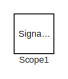
[diagram: root canvas - part 1/4, top left region]
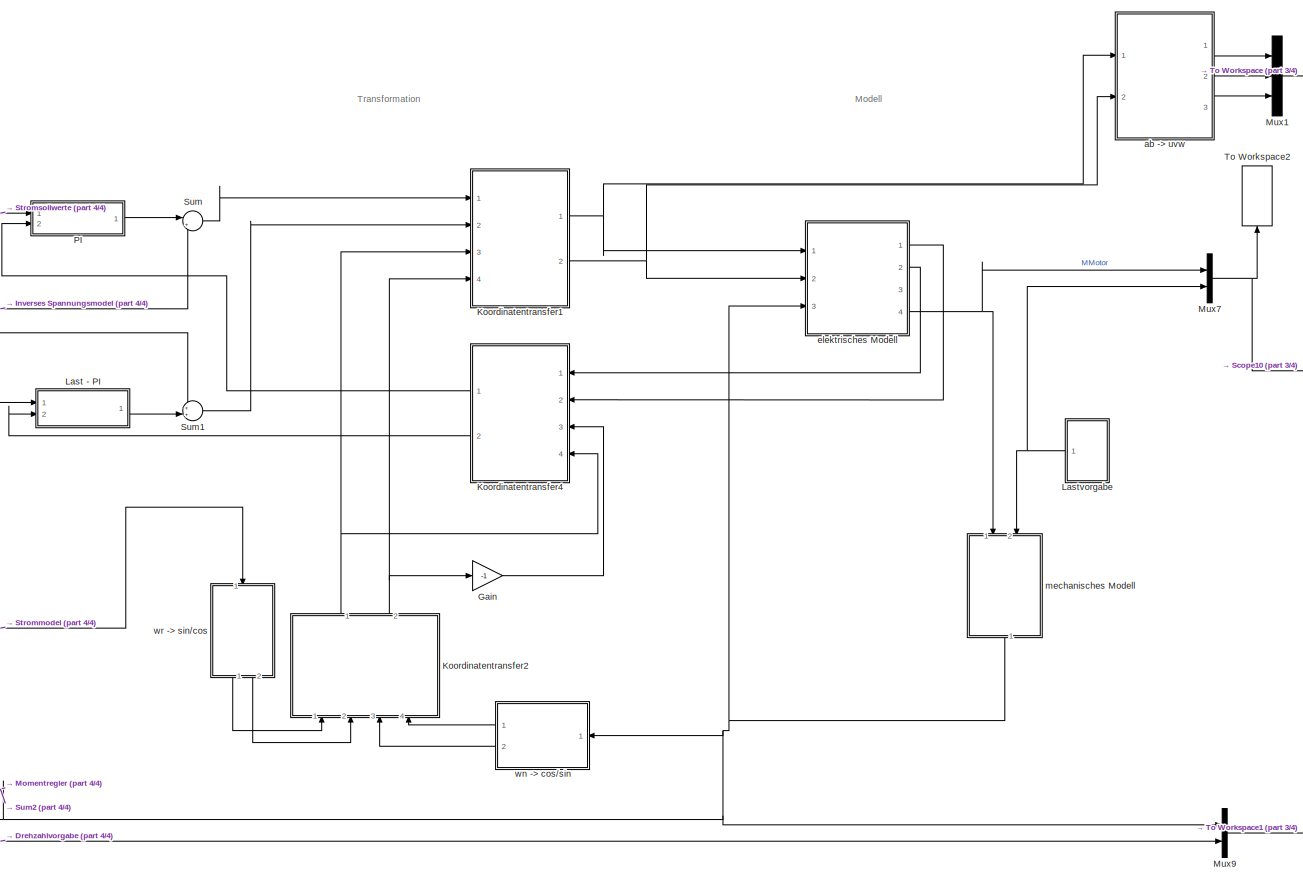
[diagram: root canvas - part 2/4, bottom center region]
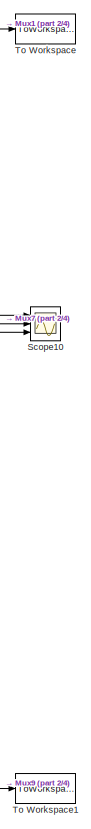
[diagram: root canvas - part 3/4, bottom right region]
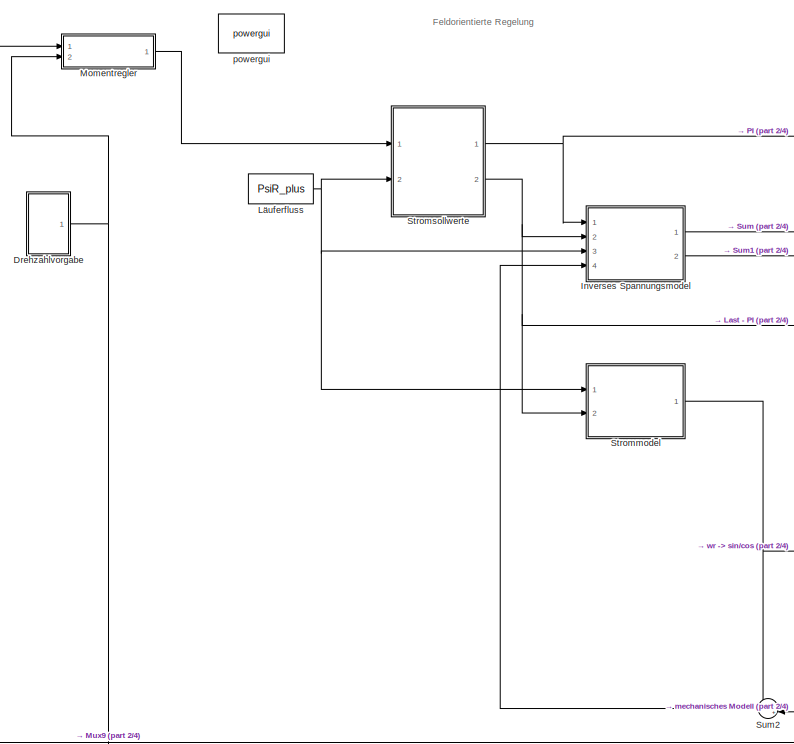
[diagram: root canvas - part 4/4, bottom left region]
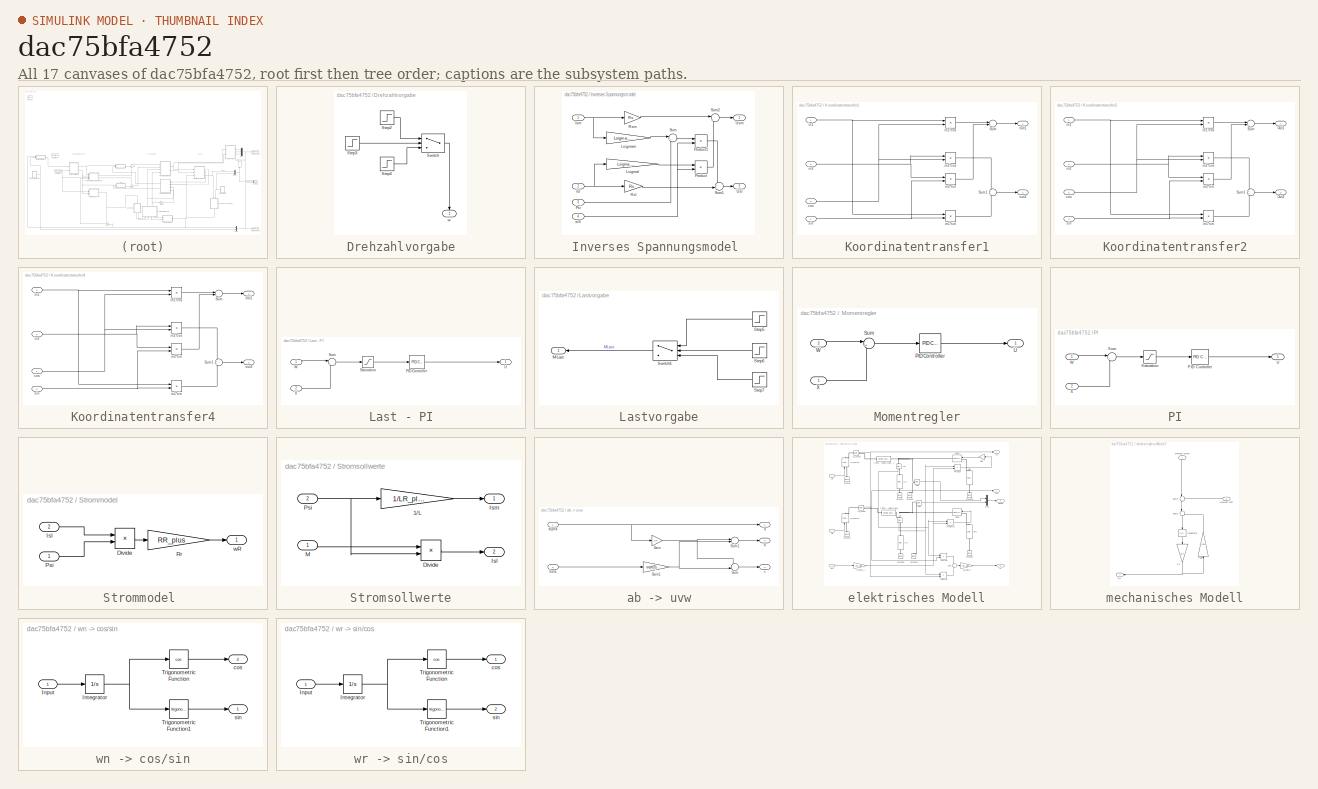
[diagram: thumbnail index - all 17 canvases of the model, root first then tree order]
MODEL slx_dac75bfa4752
KIND model
CONFIG PreLoadFcn = ASM_init
WORKSPACE source: external: MATLAB File  (data not in archive)
BLOCK [SubSystem] Drehzahlvorgabe
  Ports = [0, 1]
  RequestExecContextInheritance = off
BLOCK [Step] Drehzahlvorgabe/Step2
  After = wSoll
  SampleTime = 0
  Time = 0
BLOCK [Step] Drehzahlvorgabe/Step3
  After = 200
  SampleTime = 0
  Time = 6
BLOCK [Step] Drehzahlvorgabe/Step4
  After = wSoll1
  SampleTime = 1
BLOCK [Switch] Drehzahlvorgabe/Switch
  Criteria = u2 > Threshold
  InputSameDT = off
  SaturateOnIntegerOverflow = off
  Threshold = 8
BLOCK [Outport] Drehzahlvorgabe/w
  IconDisplay = Port number
BLOCK [Gain] Gain
  Gain = -1
  OutDataTypeStr = Inherit: Inherit via internal rule
  ParamDataTypeStr = Inherit: Inherit via internal rule
  SaturateOnIntegerOverflow = off
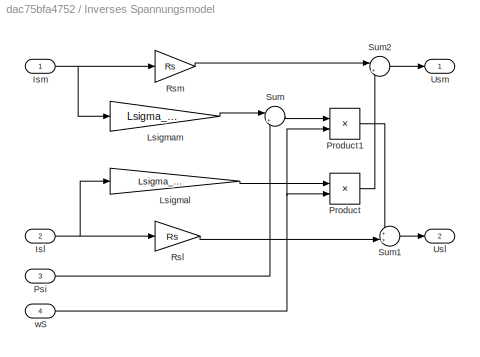
BLOCK [SubSystem] Inverses Spannungsmodel 
  Ports = [4, 2]
  RequestExecContextInheritance = off
BLOCK [Inport] Inverses Spannungsmodel /Isl
  IconDisplay = Port number
  Port = 2
BLOCK [Inport] Inverses Spannungsmodel /Ism
  IconDisplay = Port number
BLOCK [Gain] Inverses Spannungsmodel /Lsigmal
  Gain = Lsigma_plus
  OutDataTypeStr = Inherit: Inherit via internal rule
  ParamDataTypeStr = Inherit: Inherit via internal rule
  SaturateOnIntegerOverflow = off
BLOCK [Gain] Inverses Spannungsmodel /Lsigmam
  Gain = Lsigma_plus
  OutDataTypeStr = Inherit: Inherit via internal rule
  ParamDataTypeStr = Inherit: Inherit via internal rule
  SaturateOnIntegerOverflow = off
BLOCK [Product] Inverses Spannungsmodel /Product
  InputSameDT = off
  OutDataTypeStr = Inherit: Inherit via internal rule
  Ports = [2, 1]
  RndMeth = Floor
  SaturateOnIntegerOverflow = off
BLOCK [Product] Inverses Spannungsmodel /Product1
  InputSameDT = off
  OutDataTypeStr = Inherit: Inherit via internal rule
  Ports = [2, 1]
  RndMeth = Floor
  SaturateOnIntegerOverflow = off
BLOCK [Inport] Inverses Spannungsmodel /Psi
  IconDisplay = Port number
  Port = 3
BLOCK [Gain] Inverses Spannungsmodel /Rsl
  Gain = Rs
  OutDataTypeStr = Inherit: Inherit via internal rule
  ParamDataTypeStr = Inherit: Inherit via internal rule
  SaturateOnIntegerOverflow = off
BLOCK [Gain] Inverses Spannungsmodel /Rsm
  Gain = Rs
  OutDataTypeStr = Inherit: Inherit via internal rule
  ParamDataTypeStr = Inherit: Inherit via internal rule
  SaturateOnIntegerOverflow = off
BLOCK [Sum] Inverses Spannungsmodel /Sum
  IconShape = round
  InputSameDT = off
  Inputs = |++
  OutDataTypeStr = Inherit: Inherit via internal rule
  Ports = [2, 1]
  SaturateOnIntegerOverflow = off
BLOCK [Sum] Inverses Spannungsmodel /Sum1
  IconShape = round
  InputSameDT = off
  Inputs = ++|
  OutDataTypeStr = Inherit: Inherit via internal rule
  Ports = [2, 1]
  SaturateOnIntegerOverflow = off
BLOCK [Sum] Inverses Spannungsmodel /Sum2
  IconShape = round
  InputSameDT = off
  Inputs = |+-
  OutDataTypeStr = Inherit: Inherit via internal rule
  Ports = [2, 1]
  SaturateOnIntegerOverflow = off
BLOCK [Outport] Inverses Spannungsmodel /Usl
  IconDisplay = Port number
  Port = 2
BLOCK [Outport] Inverses Spannungsmodel /Usm
  IconDisplay = Port number
BLOCK [Inport] Inverses Spannungsmodel /wS
  IconDisplay = Port number
  Port = 4
BLOCK [SubSystem] Koordinatentransfer1
  Ports = [4, 2]
  RequestExecContextInheritance = off
BLOCK [Sum] Koordinatentransfer1/Sum
  IconShape = round
  InputSameDT = off
  Inputs = |+-
  OutDataTypeStr = Inherit: Inherit via internal rule
  Ports = [2, 1]
  SaturateOnIntegerOverflow = off
BLOCK [Sum] Koordinatentransfer1/Sum1
  IconShape = round
  InputSameDT = off
  OutDataTypeStr = Inherit: Inherit via internal rule
  Ports = [2, 1]
  SaturateOnIntegerOverflow = off
BLOCK [Inport] Koordinatentransfer1/cos
  IconDisplay = Port number
  Port = 3
BLOCK [Inport] Koordinatentransfer1/in1
  IconDisplay = Port number
BLOCK [Product] Koordinatentransfer1/in1*cos
  InputSameDT = off
  OutDataTypeStr = Inherit: Inherit via internal rule
  Ports = [2, 1]
  RndMeth = Floor
  SaturateOnIntegerOverflow = off
BLOCK [Product] Koordinatentransfer1/in1*sin
  InputSameDT = off
  OutDataTypeStr = Inherit: Inherit via internal rule
  Ports = [2, 1]
  RndMeth = Floor
  SaturateOnIntegerOverflow = off
BLOCK [Inport] Koordinatentransfer1/in2
  IconDisplay = Port number
  Port = 2
BLOCK [Product] Koordinatentransfer1/in2*cos
  InputSameDT = off
  OutDataTypeStr = Inherit: Inherit via internal rule
  Ports = [2, 1]
  RndMeth = Floor
  SaturateOnIntegerOverflow = off
BLOCK [Product] Koordinatentransfer1/in2*sin
  InputSameDT = off
  OutDataTypeStr = Inherit: Inherit via internal rule
  Ports = [2, 1]
  RndMeth = Floor
  SaturateOnIntegerOverflow = off
BLOCK [Outport] Koordinatentransfer1/out1
  IconDisplay = Port number
BLOCK [Outport] Koordinatentransfer1/out2
  IconDisplay = Port number
  Port = 2
BLOCK [Inport] Koordinatentransfer1/sin
  IconDisplay = Port number
  Port = 4
BLOCK [SubSystem] Koordinatentransfer2
  Ports = [4, 2]
  RequestExecContextInheritance = off
BLOCK [Outport] Koordinatentransfer2/Out1
  IconDisplay = Port number
BLOCK [Outport] Koordinatentransfer2/Out2
  IconDisplay = Port number
  Port = 2
BLOCK [Sum] Koordinatentransfer2/Sum
  IconShape = round
  InputSameDT = off
  Inputs = |+-
  OutDataTypeStr = Inherit: Inherit via internal rule
  Ports = [2, 1]
  SaturateOnIntegerOverflow = off
BLOCK [Sum] Koordinatentransfer2/Sum1
  IconShape = round
  InputSameDT = off
  OutDataTypeStr = Inherit: Inherit via internal rule
  Ports = [2, 1]
  SaturateOnIntegerOverflow = off
BLOCK [Inport] Koordinatentransfer2/cos
  IconDisplay = Port number
  Port = 3
BLOCK [Inport] Koordinatentransfer2/in1
  IconDisplay = Port number
BLOCK [Product] Koordinatentransfer2/in1*cos
  InputSameDT = off
  OutDataTypeStr = Inherit: Inherit via internal rule
  Ports = [2, 1]
  RndMeth = Floor
  SaturateOnIntegerOverflow = off
BLOCK [Product] Koordinatentransfer2/in1*sin
  InputSameDT = off
  OutDataTypeStr = Inherit: Inherit via internal rule
  Ports = [2, 1]
  RndMeth = Floor
  SaturateOnIntegerOverflow = off
BLOCK [Inport] Koordinatentransfer2/in2
  IconDisplay = Port number
  Port = 2
BLOCK [Product] Koordinatentransfer2/in2*cos
  InputSameDT = off
  OutDataTypeStr = Inherit: Inherit via internal rule
  Ports = [2, 1]
  RndMeth = Floor
  SaturateOnIntegerOverflow = off
BLOCK [Product] Koordinatentransfer2/in2*sin
  InputSameDT = off
  OutDataTypeStr = Inherit: Inherit via internal rule
  Ports = [2, 1]
  RndMeth = Floor
  SaturateOnIntegerOverflow = off
BLOCK [Inport] Koordinatentransfer2/sin 
  IconDisplay = Port number
  Port = 4
BLOCK [SubSystem] Koordinatentransfer4
  Ports = [4, 2]
  RequestExecContextInheritance = off
BLOCK [Sum] Koordinatentransfer4/Sum
  IconShape = round
  InputSameDT = off
  Inputs = |+-
  OutDataTypeStr = Inherit: Inherit via internal rule
  Ports = [2, 1]
  SaturateOnIntegerOverflow = off
BLOCK [Sum] Koordinatentransfer4/Sum1
  IconShape = round
  InputSameDT = off
  OutDataTypeStr = Inherit: Inherit via internal rule
  Ports = [2, 1]
  SaturateOnIntegerOverflow = off
BLOCK [Inport] Koordinatentransfer4/cos
  IconDisplay = Port number
  Port = 4
BLOCK [Inport] Koordinatentransfer4/in1
  IconDisplay = Port number
BLOCK [Product] Koordinatentransfer4/in1*cos
  InputSameDT = off
  OutDataTypeStr = Inherit: Inherit via internal rule
  Ports = [2, 1]
  RndMeth = Floor
  SaturateOnIntegerOverflow = off
BLOCK [Product] Koordinatentransfer4/in1*sin
  InputSameDT = off
  OutDataTypeStr = Inherit: Inherit via internal rule
  Ports = [2, 1]
  RndMeth = Floor
  SaturateOnIntegerOverflow = off
BLOCK [Inport] Koordinatentransfer4/in2
  IconDisplay = Port number
  Port = 2
BLOCK [Product] Koordinatentransfer4/in2*cos
  InputSameDT = off
  OutDataTypeStr = Inherit: Inherit via internal rule
  Ports = [2, 1]
  RndMeth = Floor
  SaturateOnIntegerOverflow = off
BLOCK [Product] Koordinatentransfer4/in2*sin
  InputSameDT = off
  OutDataTypeStr = Inherit: Inherit via internal rule
  Ports = [2, 1]
  RndMeth = Floor
  SaturateOnIntegerOverflow = off
BLOCK [Outport] Koordinatentransfer4/out1
  IconDisplay = Port number
BLOCK [Outport] Koordinatentransfer4/out2
  IconDisplay = Port number
  Port = 2
BLOCK [Inport] Koordinatentransfer4/sin
  IconDisplay = Port number
  Port = 3
BLOCK [SubSystem] Last - PI
  Ports = [2, 1]
  RequestExecContextInheritance = off
BLOCK [Reference] Last - PI/PID Controller  REF=simulink/Continuous/PID Controller
  AntiWindupMode = none
  Controller = PI
  D = 0.0225096512911581
  DOutDataTypeStr = Inherit: Inherit via internal rule
  DOutMax = []
  DOutMin = []
  DParamDataTypeStr = Inherit: Inherit via internal rule
  DParamMax = []
  DParamMin = []
  ExternalReset = none
  FilterContinuousStateAttributes = ''
  FilterMethod = Forward Euler
  FilterOutDataTypeStr = Inherit: Inherit via internal rule
  FilterOutMax = []
  FilterOutMin = []
  FilterRTWStateStorageClass = Auto
  FilterStateMustResolveToSignalObject = off
  Form = Parallel
  I = 59.0597737641669
  IOutDataTypeStr = Inherit: Inherit via internal rule
  IOutMax = []
  IOutMin = []
  IParamDataTypeStr = Inherit: Inherit via internal rule
  IParamMax = []
  IParamMin = []
  IgnoreLimit = off
  InitialConditionForFilter = 0
  InitialConditionForIntegrator = 0
  InitialConditionSource = internal
  IntegratorContinuousStateAttributes = ''
  IntegratorMethod = Forward Euler
  IntegratorOutDataTypeStr = Inherit: Inherit via internal rule
  IntegratorOutMax = []
  IntegratorOutMin = []
  IntegratorRTWStateStorageClass = Auto
  IntegratorStateMustResolveToSignalObject = off
  Kb = 1
  KbOutDataTypeStr = Inherit: Inherit via internal rule
  KbOutMax = []
  KbOutMin = []
  KbParamDataTypeStr = Inherit: Inherit via internal rule
  KbParamMax = []
  KbParamMin = []
  Kt = 1
  KtOutDataTypeStr = Inherit: Inherit via internal rule
  KtOutMax = []
  KtOutMin = []
  KtParamDataTypeStr = Inherit: Inherit via internal rule
  KtParamMax = []
  KtParamMin = []
  LimitOutput = on
  LinearizeAsGain = off
  LockScale = off
  LowerSaturationLimit = 0
  N = 2097943.11620465
  NOutDataTypeStr = Inherit: Inherit via internal rule
  NOutMax = []
  NOutMin = []
  NParamDataTypeStr = Inherit: Inherit via internal rule
  NParamMax = []
  NParamMin = []
  P = 3.02729379594108
  POutDataTypeStr = Inherit: Inherit via internal rule
  POutMax = []
  POutMin = []
  PParamDataTypeStr = Inherit: Inherit via internal rule
  PParamMax = []
  PParamMin = []
  Ports = [1, 1]
  RndMeth = Floor
  SampleTime = 1
  SaturateOnIntegerOverflow = off
  SaturationOutDataTypeStr = Inherit: Same as input
  SaturationOutMax = []
  SaturationOutMin = []
  SourceBlock = simulink/Continuous/PID Controller
  SourceType = PID 1dof
  SumAccumDataTypeStr = Inherit: Inherit via internal rule
  SumDAccumDataTypeStr = Inherit: Inherit via internal rule
  SumDOutDataTypeStr = Inherit: Inherit via internal rule
  SumDOutMax = []
  SumDOutMin = []
  SumI1AccumDataTypeStr = Inherit: Inherit via internal rule
  SumI1OutDataTypeStr = Inherit: Inherit via internal rule
  SumI1OutMax = []
  SumI1OutMin = []
  SumI2AccumDataTypeStr = Inherit: Inherit via internal rule
  SumI2OutDataTypeStr = Inherit: Inherit via internal rule
  SumI2OutMax = []
  SumI2OutMin = []
  SumI3AccumDataTypeStr = Inherit: Inherit via internal rule
  SumI3OutDataTypeStr = Inherit: Inherit via internal rule
  SumI3OutMax = []
  SumI3OutMin = []
  SumOutDataTypeStr = Inherit: Inherit via internal rule
  SumOutMax = []
  SumOutMin = []
  TimeDomain = Continuous-time
  TrackingMode = off
  UpperSaturationLimit = 325
  ZeroCross = on
BLOCK [Saturate] Last - PI/Saturation
  InputPortMap = u0
  LinearizeAsGain = off
  LowerLimit = 0
  Ports = [1, 1]
  UpperLimit = StartStrom
BLOCK [Sum] Last - PI/Sum
  IconShape = round
  InputSameDT = off
  Inputs = |+-
  OutDataTypeStr = Inherit: Inherit via internal rule
  Ports = [2, 1]
  SaturateOnIntegerOverflow = off
BLOCK [Outport] Last - PI/U
  IconDisplay = Port number
BLOCK [Inport] Last - PI/W
  IconDisplay = Port number
BLOCK [Inport] Last - PI/X
  IconDisplay = Port number
  Port = 2
BLOCK [SubSystem] Lastvorgabe
  Ports = [0, 1]
  RequestExecContextInheritance = off
BLOCK [Outport] Lastvorgabe/MLast
  IconDisplay = Port number
BLOCK [Step] Lastvorgabe/Step5
  After = MLast
  SampleTime = 0
  Time = 6
BLOCK [Step] Lastvorgabe/Step6
  After = 200
  SampleTime = 0
  Time = 6
BLOCK [Step] Lastvorgabe/Step7
  After = MLast1
  SampleTime = 0
BLOCK [Switch] Lastvorgabe/Switch1
  Criteria = u2 > Threshold
  InputSameDT = off
  SaturateOnIntegerOverflow = off
  Threshold = 10
BLOCK [Constant] Läuferfluss
  Value = PsiR_plus
BLOCK [SubSystem] Momentregler
  Ports = [2, 1]
  RequestExecContextInheritance = off
BLOCK [Reference] Momentregler/PID Controller  REF=simulink/Continuous/PID Controller
  AntiWindupMode = none
  Controller = PI
  D = 0
  DOutDataTypeStr = Inherit: Inherit via internal rule
  DOutMax = []
  DOutMin = []
  DParamDataTypeStr = Inherit: Inherit via internal rule
  DParamMax = []
  DParamMin = []
  ExternalReset = none
  FilterContinuousStateAttributes = ''
  FilterMethod = Forward Euler
  FilterOutDataTypeStr = Inherit: Inherit via internal rule
  FilterOutMax = []
  FilterOutMin = []
  FilterRTWStateStorageClass = Auto
  FilterStateMustResolveToSignalObject = off
  Form = Parallel
  I = 0.0278541269001317
  IOutDataTypeStr = Inherit: Inherit via internal rule
  IOutMax = []
  IOutMin = []
  IParamDataTypeStr = Inherit: Inherit via internal rule
  IParamMax = []
  IParamMin = []
  IgnoreLimit = off
  InitialConditionForFilter = 0
  InitialConditionForIntegrator = 0
  InitialConditionSource = internal
  IntegratorContinuousStateAttributes = ''
  IntegratorMethod = Forward Euler
  IntegratorOutDataTypeStr = Inherit: Inherit via internal rule
  IntegratorOutMax = []
  IntegratorOutMin = []
  IntegratorRTWStateStorageClass = Auto
  IntegratorStateMustResolveToSignalObject = off
  Kb = 1
  KbOutDataTypeStr = Inherit: Inherit via internal rule
  KbOutMax = []
  KbOutMin = []
  KbParamDataTypeStr = Inherit: Inherit via internal rule
  KbParamMax = []
  KbParamMin = []
  Kt = 1
  KtOutDataTypeStr = Inherit: Inherit via internal rule
  KtOutMax = []
  KtOutMin = []
  KtParamDataTypeStr = Inherit: Inherit via internal rule
  KtParamMax = []
  KtParamMin = []
  LimitOutput = on
  LinearizeAsGain = off
  LockScale = off
  LowerSaturationLimit = -StartMoment
  N = 1000
  NOutDataTypeStr = Inherit: Inherit via internal rule
  NOutMax = []
  NOutMin = []
  NParamDataTypeStr = Inherit: Inherit via internal rule
  NParamMax = []
  NParamMin = []
  P = 0.0785257439463388
  POutDataTypeStr = Inherit: Inherit via internal rule
  POutMax = []
  POutMin = []
  PParamDataTypeStr = Inherit: Inherit via internal rule
  PParamMax = []
  PParamMin = []
  Ports = [1, 1]
  RndMeth = Floor
  SampleTime = 1
  SaturateOnIntegerOverflow = off
  SaturationOutDataTypeStr = Inherit: Same as input
  SaturationOutMax = []
  SaturationOutMin = []
  SourceBlock = simulink/Continuous/PID Controller
  SourceType = PID 1dof
  SumAccumDataTypeStr = Inherit: Inherit via internal rule
  SumDAccumDataTypeStr = Inherit: Inherit via internal rule
  SumDOutDataTypeStr = Inherit: Inherit via internal rule
  SumDOutMax = []
  SumDOutMin = []
  SumI1AccumDataTypeStr = Inherit: Inherit via internal rule
  SumI1OutDataTypeStr = Inherit: Inherit via internal rule
  SumI1OutMax = []
  SumI1OutMin = []
  SumI2AccumDataTypeStr = Inherit: Inherit via internal rule
  SumI2OutDataTypeStr = Inherit: Inherit via internal rule
  SumI2OutMax = []
  SumI2OutMin = []
  SumI3AccumDataTypeStr = Inherit: Inherit via internal rule
  SumI3OutDataTypeStr = Inherit: Inherit via internal rule
  SumI3OutMax = []
  SumI3OutMin = []
  SumOutDataTypeStr = Inherit: Inherit via internal rule
  SumOutMax = []
  SumOutMin = []
  TimeDomain = Continuous-time
  TrackingMode = off
  UpperSaturationLimit = StartMoment
  ZeroCross = on
BLOCK [Sum] Momentregler/Sum
  IconShape = round
  InputSameDT = off
  Inputs = |+-
  OutDataTypeStr = Inherit: Inherit via internal rule
  Ports = [2, 1]
  SaturateOnIntegerOverflow = off
BLOCK [Outport] Momentregler/U
  IconDisplay = Port number
BLOCK [Inport] Momentregler/W
  IconDisplay = Port number
  Port = 2
BLOCK [Inport] Momentregler/X
  IconDisplay = Port number
BLOCK [Mux] Mux1
  DisplayOption = bar
  Inputs = 3
  Ports = [3, 1]
BLOCK [Mux] Mux7
  DisplayOption = bar
  Inputs = 2
  Ports = [2, 1]
BLOCK [Mux] Mux9
  DisplayOption = bar
  Inputs = 2
  Ports = [2, 1]
BLOCK [SubSystem] PI
  Ports = [2, 1]
  RequestExecContextInheritance = off
BLOCK [Reference] PI/PID Controller  REF=simulink/Continuous/PID Controller
  AntiWindupMode = none
  Controller = PI
  D = 0.0225096512911581
  DOutDataTypeStr = Inherit: Inherit via internal rule
  DOutMax = []
  DOutMin = []
  DParamDataTypeStr = Inherit: Inherit via internal rule
  DParamMax = []
  DParamMin = []
  ExternalReset = none
  FilterContinuousStateAttributes = ''
  FilterMethod = Forward Euler
  FilterOutDataTypeStr = Inherit: Inherit via internal rule
  FilterOutMax = []
  FilterOutMin = []
  FilterRTWStateStorageClass = Auto
  FilterStateMustResolveToSignalObject = off
  Form = Parallel
  I = 59.0597737641669
  IOutDataTypeStr = Inherit: Inherit via internal rule
  IOutMax = []
  IOutMin = []
  IParamDataTypeStr = Inherit: Inherit via internal rule
  IParamMax = []
  IParamMin = []
  IgnoreLimit = off
  InitialConditionForFilter = 0
  InitialConditionForIntegrator = 0
  InitialConditionSource = internal
  IntegratorContinuousStateAttributes = ''
  IntegratorMethod = Forward Euler
  IntegratorOutDataTypeStr = Inherit: Inherit via internal rule
  IntegratorOutMax = []
  IntegratorOutMin = []
  IntegratorRTWStateStorageClass = Auto
  IntegratorStateMustResolveToSignalObject = off
  Kb = 1
  KbOutDataTypeStr = Inherit: Inherit via internal rule
  KbOutMax = []
  KbOutMin = []
  KbParamDataTypeStr = Inherit: Inherit via internal rule
  KbParamMax = []
  KbParamMin = []
  Kt = 1
  KtOutDataTypeStr = Inherit: Inherit via internal rule
  KtOutMax = []
  KtOutMin = []
  KtParamDataTypeStr = Inherit: Inherit via internal rule
  KtParamMax = []
  KtParamMin = []
  LimitOutput = on
  LinearizeAsGain = off
  LockScale = off
  LowerSaturationLimit = 0
  N = 2097943.11620465
  NOutDataTypeStr = Inherit: Inherit via internal rule
  NOutMax = []
  NOutMin = []
  NParamDataTypeStr = Inherit: Inherit via internal rule
  NParamMax = []
  NParamMin = []
  P = 3.02729379594108
  POutDataTypeStr = Inherit: Inherit via internal rule
  POutMax = []
  POutMin = []
  PParamDataTypeStr = Inherit: Inherit via internal rule
  PParamMax = []
  PParamMin = []
  Ports = [1, 1]
  RndMeth = Floor
  SampleTime = 1
  SaturateOnIntegerOverflow = off
  SaturationOutDataTypeStr = Inherit: Same as input
  SaturationOutMax = []
  SaturationOutMin = []
  SourceBlock = simulink/Continuous/PID Controller
  SourceType = PID 1dof
  SumAccumDataTypeStr = Inherit: Inherit via internal rule
  SumDAccumDataTypeStr = Inherit: Inherit via internal rule
  SumDOutDataTypeStr = Inherit: Inherit via internal rule
  SumDOutMax = []
  SumDOutMin = []
  SumI1AccumDataTypeStr = Inherit: Inherit via internal rule
  SumI1OutDataTypeStr = Inherit: Inherit via internal rule
  SumI1OutMax = []
  SumI1OutMin = []
  SumI2AccumDataTypeStr = Inherit: Inherit via internal rule
  SumI2OutDataTypeStr = Inherit: Inherit via internal rule
  SumI2OutMax = []
  SumI2OutMin = []
  SumI3AccumDataTypeStr = Inherit: Inherit via internal rule
  SumI3OutDataTypeStr = Inherit: Inherit via internal rule
  SumI3OutMax = []
  SumI3OutMin = []
  SumOutDataTypeStr = Inherit: Inherit via internal rule
  SumOutMax = []
  SumOutMin = []
  TimeDomain = Continuous-time
  TrackingMode = off
  UpperSaturationLimit = 325
  ZeroCross = on
BLOCK [Saturate] PI/Saturation
  InputPortMap = u0
  LinearizeAsGain = off
  LowerLimit = 0
  Ports = [1, 1]
  UpperLimit = StartStrom
BLOCK [Sum] PI/Sum
  IconShape = round
  InputSameDT = off
  Inputs = |+-
  OutDataTypeStr = Inherit: Inherit via internal rule
  Ports = [2, 1]
  SaturateOnIntegerOverflow = off
BLOCK [Outport] PI/U
  IconDisplay = Port number
BLOCK [Inport] PI/W
  IconDisplay = Port number
BLOCK [Inport] PI/X
  IconDisplay = Port number
  Port = 2
BLOCK [SignalViewerScope] Scope1
  IOType = viewer
  MaxDataPoints = 7500
  NumInputPorts = 1
  Ports = []
  RefreshTime = 0.035000
  ShowDataMarkers = off
  ShowLegends = off
  ZoomMode = xonly
BLOCK [Scope] Scope10
  Floating = off
  LegendLocations = 0.86804     0.91003    0.072474    0.069322\n0.86796     0.59292    0.075403    0.047935\n0.92653     0.27876     0.10542    0.047935
  LimitDataPoints = off
  NumInputPorts = 3
  Ports = [3]
  SaveName = ScopeData10
  ShowLegends = on
  TimeRange = 4
  YMax = 5000~10~500
  YMin = -5000~3~-5000
  ZoomMode = yonly
BLOCK [SubSystem] Strommodel 
  Ports = [2, 1]
  RequestExecContextInheritance = off
BLOCK [Product] Strommodel /Divide
  InputSameDT = off
  Inputs = */
  OutDataTypeStr = Inherit: Inherit via internal rule
  Ports = [2, 1]
  RndMeth = Floor
  SaturateOnIntegerOverflow = off
BLOCK [Inport] Strommodel /Isl
  IconDisplay = Port number
  Port = 2
BLOCK [Inport] Strommodel /Psi
  IconDisplay = Port number
BLOCK [Gain] Strommodel /Rr
  Gain = RR_plus
  OutDataTypeStr = Inherit: Inherit via internal rule
  ParamDataTypeStr = Inherit: Inherit via internal rule
  SaturateOnIntegerOverflow = off
BLOCK [Outport] Strommodel /wR
  IconDisplay = Port number
BLOCK [SubSystem] Stromsollwerte
  Ports = [2, 2]
  RequestExecContextInheritance = off
BLOCK [Gain] Stromsollwerte/1//L
  Gain = 1/LR_plus
  OutDataTypeStr = Inherit: Inherit via internal rule
  ParamDataTypeStr = Inherit: Inherit via internal rule
  SaturateOnIntegerOverflow = off
BLOCK [Product] Stromsollwerte/Divide
  InputSameDT = off
  Inputs = */
  OutDataTypeStr = Inherit: Inherit via internal rule
  Ports = [2, 1]
  RndMeth = Floor
  SaturateOnIntegerOverflow = off
BLOCK [Outport] Stromsollwerte/Isl
  IconDisplay = Port number
  OutMax = [1.8]
  Port = 2
BLOCK [Outport] Stromsollwerte/Ism
  IconDisplay = Port number
  OutMax = 1.8
BLOCK [Inport] Stromsollwerte/M
  IconDisplay = Port number
BLOCK [Inport] Stromsollwerte/Psi
  IconDisplay = Port number
  Port = 2
BLOCK [Sum] Sum
  IconShape = round
  InputSameDT = off
  Inputs = |++
  OutDataTypeStr = Inherit: Inherit via internal rule
  Ports = [2, 1]
  SaturateOnIntegerOverflow = off
BLOCK [Sum] Sum1
  IconShape = round
  InputSameDT = off
  Inputs = ++|
  OutDataTypeStr = Inherit: Inherit via internal rule
  Ports = [2, 1]
  SaturateOnIntegerOverflow = off
BLOCK [Sum] Sum2
  IconShape = round
  InputSameDT = off
  Inputs = ++|
  OutDataTypeStr = Inherit: Inherit via internal rule
  Ports = [2, 1]
  SaturateOnIntegerOverflow = off
BLOCK [ToWorkspace] To Workspace
  FixptAsFi = on
  MaxDataPoints = inf
  Ports = [1]
  SampleTime = -1
  Save2DSignal = 3-D array (concatenate along third dimension)
  VariableName = uvw
BLOCK [ToWorkspace] To Workspace1
  FixptAsFi = on
  MaxDataPoints = inf
  Ports = [1]
  SampleTime = -1
  Save2DSignal = 3-D array (concatenate along third dimension)
  VariableName = w
BLOCK [ToWorkspace] To Workspace2
  FixptAsFi = on
  MaxDataPoints = inf
  Ports = [1]
  SampleTime = -1
  Save2DSignal = 3-D array (concatenate along third dimension)
  VariableName = m
BLOCK [SubSystem] ab -> uvw
  Ports = [2, 3]
  RequestExecContextInheritance = off
BLOCK [Gain] ab -> uvw/Gain
  Gain = 0.5
  OutDataTypeStr = Inherit: Inherit via internal rule
  ParamDataTypeStr = Inherit: Inherit via internal rule
  SaturateOnIntegerOverflow = off
BLOCK [Gain] ab -> uvw/Gain1
  Gain = sqrt(3)/2
  OutDataTypeStr = Inherit: Inherit via internal rule
  ParamDataTypeStr = Inherit: Inherit via internal rule
  SaturateOnIntegerOverflow = off
BLOCK [Sum] ab -> uvw/Sum
  IconShape = round
  InputSameDT = off
  Inputs = --|
  OutDataTypeStr = Inherit: Inherit via internal rule
  Ports = [2, 1]
  SaturateOnIntegerOverflow = off
BLOCK [Sum] ab -> uvw/Sum1
  IconShape = round
  InputSameDT = off
  Inputs = |-+
  OutDataTypeStr = Inherit: Inherit via internal rule
  Ports = [2, 1]
  SaturateOnIntegerOverflow = off
BLOCK [Outport] ab -> uvw/a
  IconDisplay = Port number
BLOCK [Inport] ab -> uvw/alpha
  IconDisplay = Port number
BLOCK [Outport] ab -> uvw/b
  IconDisplay = Port number
  Port = 2
BLOCK [Inport] ab -> uvw/beta
  IconDisplay = Port number
  Port = 2
BLOCK [Outport] ab -> uvw/c
  IconDisplay = Port number
  Port = 3
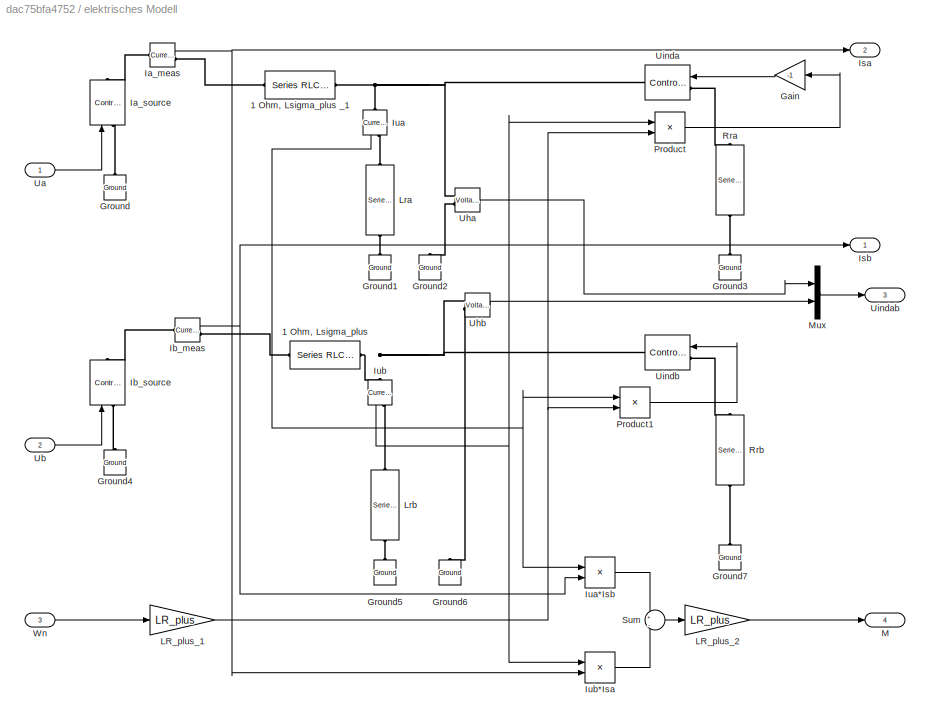
BLOCK [SubSystem] elektrisches Modell
  Ports = [3, 4]
  RequestExecContextInheritance = off
BLOCK [Reference] elektrisches Modell/1 Ohm, Lsigma_plus  REF=powerlib/Elements/Series RLC Branch
  BranchType = RL
  Capacitance = 1e-6
  Inductance = Lsigma_plus
  InitialCurrent = 10
  InitialVoltage = 0
  LConnTagsString = __new0
  Measurements = None
  Ports = [0, 0, 0, 0, 0, 1, 1]
  RConnTagsString = __new0
  Resistance = RR_plus
  SetiL0 = on
  Setx0 = off
  SourceBlock = powerlib/Elements/Series RLC Branch
  SourceType = Series RLC Branch
BLOCK [Reference] elektrisches Modell/1 Ohm, Lsigma_plus _1   REF=powerlib/Elements/Series RLC Branch
  BranchType = RL
  Capacitance = 1e-6
  Inductance = Lsigma_plus
  InitialCurrent = 10
  InitialVoltage = 0
  LConnTagsString = __new0
  Measurements = None
  Ports = [0, 0, 0, 0, 0, 1, 1]
  RConnTagsString = __new0
  Resistance = RR_plus
  SetiL0 = on
  Setx0 = off
  SourceBlock = powerlib/Elements/Series RLC Branch
  SourceType = Series RLC Branch
BLOCK [Gain] elektrisches Modell/Gain
  Gain = -1
  OutDataTypeStr = Inherit: Inherit via internal rule
  ParamDataTypeStr = Inherit: Inherit via internal rule
  SaturateOnIntegerOverflow = off
BLOCK [Reference] elektrisches Modell/Ground  REF=powerlib/Elements/Ground
  LConnTagsString = a
  Ports = [0, 0, 0, 0, 0, 1]
  SourceBlock = powerlib/Elements/Ground
  SourceType = Ground
BLOCK [Reference] elektrisches Modell/Ground1  REF=powerlib/Elements/Ground
  LConnTagsString = a
  Ports = [0, 0, 0, 0, 0, 1]
  SourceBlock = powerlib/Elements/Ground
  SourceType = Ground
BLOCK [Reference] elektrisches Modell/Ground2  REF=powerlib/Elements/Ground
  LConnTagsString = a
  Ports = [0, 0, 0, 0, 0, 1]
  SourceBlock = powerlib/Elements/Ground
  SourceType = Ground
BLOCK [Reference] elektrisches Modell/Ground3  REF=powerlib/Elements/Ground
  LConnTagsString = a
  Ports = [0, 0, 0, 0, 0, 1]
  SourceBlock = powerlib/Elements/Ground
  SourceType = Ground
BLOCK [Reference] elektrisches Modell/Ground4  REF=powerlib/Elements/Ground
  LConnTagsString = a
  Ports = [0, 0, 0, 0, 0, 1]
  SourceBlock = powerlib/Elements/Ground
  SourceType = Ground
BLOCK [Reference] elektrisches Modell/Ground5  REF=powerlib/Elements/Ground
  LConnTagsString = a
  Ports = [0, 0, 0, 0, 0, 1]
  SourceBlock = powerlib/Elements/Ground
  SourceType = Ground
BLOCK [Reference] elektrisches Modell/Ground6  REF=powerlib/Elements/Ground
  LConnTagsString = a
  Ports = [0, 0, 0, 0, 0, 1]
  SourceBlock = powerlib/Elements/Ground
  SourceType = Ground
BLOCK [Reference] elektrisches Modell/Ground7  REF=powerlib/Elements/Ground
  LConnTagsString = a
  Ports = [0, 0, 0, 0, 0, 1]
  SourceBlock = powerlib/Elements/Ground
  SourceType = Ground
BLOCK [Reference] elektrisches Modell/Ia_meas  REF=powerlib/Measurements/Current Measurement
  OutputType = Complex
  PSBequivalent = 0
  PhasorSimulation = off
  Ports = [0, 1, 0, 0, 0, 1, 1]
  SourceBlock = powerlib/Measurements/Current Measurement
  SourceType = Current Measurement
  UserDataPersistent = on
BLOCK [Reference] elektrisches Modell/Ia_source  REF=powerlib/Electrical
Sources/Controlled Voltage Source
  Amplitude = 0
  Frequency = 0
  Initialize = on
  Measurements = None
  Phase = 0
  Ports = [1, 0, 0, 0, 0, 1, 1]
  SourceBlock = powerlib/Electrical\nSources/Controlled Voltage Source
  SourceType = Controlled Voltage Source
  Source_Type = AC
BLOCK [Reference] elektrisches Modell/Ib_meas  REF=powerlib/Measurements/Current Measurement
  OutputType = Complex
  PSBequivalent = 0
  PhasorSimulation = off
  Ports = [0, 1, 0, 0, 0, 1, 1]
  SourceBlock = powerlib/Measurements/Current Measurement
  SourceType = Current Measurement
  UserDataPersistent = on
BLOCK [Reference] elektrisches Modell/Ib_source  REF=powerlib/Electrical
Sources/Controlled Voltage Source
  Amplitude = 0
  Frequency = 0
  Initialize = on
  Measurements = None
  Phase = 0
  Ports = [1, 0, 0, 0, 0, 1, 1]
  SourceBlock = powerlib/Electrical\nSources/Controlled Voltage Source
  SourceType = Controlled Voltage Source
  Source_Type = AC
BLOCK [Outport] elektrisches Modell/Isa
  IconDisplay = Port number
  Port = 2
BLOCK [Outport] elektrisches Modell/Isb
  IconDisplay = Port number
BLOCK [Reference] elektrisches Modell/Iua  REF=powerlib/Measurements/Current Measurement
  OutputType = Complex
  PSBequivalent = 0
  PhasorSimulation = off
  Ports = [0, 1, 0, 0, 0, 1, 1]
  SourceBlock = powerlib/Measurements/Current Measurement
  SourceType = Current Measurement
  UserDataPersistent = on
BLOCK [Product] elektrisches Modell/Iua*Isb
  InputSameDT = off
  OutDataTypeStr = Inherit: Inherit via internal rule
  Ports = [2, 1]
  RndMeth = Floor
  SaturateOnIntegerOverflow = off
BLOCK [Reference] elektrisches Modell/Iub  REF=powerlib/Measurements/Current Measurement
  OutputType = Complex
  PSBequivalent = 0
  PhasorSimulation = off
  Ports = [0, 1, 0, 0, 0, 1, 1]
  SourceBlock = powerlib/Measurements/Current Measurement
  SourceType = Current Measurement
  UserDataPersistent = on
BLOCK [Product] elektrisches Modell/Iub*Isa
  InputSameDT = off
  OutDataTypeStr = Inherit: Inherit via internal rule
  Ports = [2, 1]
  RndMeth = Floor
  SaturateOnIntegerOverflow = off
BLOCK [Gain] elektrisches Modell/LR_plus_1
  Gain = LR_plus
  OutDataTypeStr = Inherit: Inherit via internal rule
  ParamDataTypeStr = Inherit: Inherit via internal rule
  SaturateOnIntegerOverflow = off
BLOCK [Gain] elektrisches Modell/LR_plus_2
  Gain = LR_plus
  OutDataTypeStr = Inherit: Inherit via internal rule
  ParamDataTypeStr = Inherit: Inherit via internal rule
  SaturateOnIntegerOverflow = off
BLOCK [Reference] elektrisches Modell/Lra  REF=powerlib/Elements/Series RLC Branch
  BranchType = L
  Capacitance = 1e-6
  Inductance = LR_plus
  InitialCurrent = 10
  InitialVoltage = 0
  LConnTagsString = __new0
  Measurements = None
  Ports = [0, 0, 0, 0, 0, 1, 1]
  RConnTagsString = __new0
  Resistance = 1
  SetiL0 = on
  Setx0 = off
  SourceBlock = powerlib/Elements/Series RLC Branch
  SourceType = Series RLC Branch
BLOCK [Reference] elektrisches Modell/Lrb  REF=powerlib/Elements/Series RLC Branch
  BranchType = L
  Capacitance = 1e-6
  Inductance = LR_plus
  InitialCurrent = 10
  InitialVoltage = 0
  LConnTagsString = __new0
  Measurements = None
  Ports = [0, 0, 0, 0, 0, 1, 1]
  RConnTagsString = __new0
  Resistance = 1
  SetiL0 = on
  Setx0 = off
  SourceBlock = powerlib/Elements/Series RLC Branch
  SourceType = Series RLC Branch
BLOCK [Outport] elektrisches Modell/M
  IconDisplay = Port number
  Port = 4
BLOCK [Mux] elektrisches Modell/Mux
  DisplayOption = bar
  Inputs = 2
  Ports = [2, 1]
BLOCK [Product] elektrisches Modell/Product
  InputSameDT = off
  OutDataTypeStr = Inherit: Inherit via internal rule
  Ports = [2, 1]
  RndMeth = Floor
  SaturateOnIntegerOverflow = off
BLOCK [Product] elektrisches Modell/Product1
  InputSameDT = off
  OutDataTypeStr = Inherit: Inherit via internal rule
  Ports = [2, 1]
  RndMeth = Floor
  SaturateOnIntegerOverflow = off
BLOCK [Reference] elektrisches Modell/Rra  REF=powerlib/Elements/Series RLC Branch
  BranchType = R
  Capacitance = 1e-6
  Inductance = 100e-3
  InitialCurrent = 0
  InitialVoltage = 0
  LConnTagsString = __new0
  Measurements = None
  Ports = [0, 0, 0, 0, 0, 1, 1]
  RConnTagsString = __new0
  Resistance = RR_plus
  SetiL0 = off
  Setx0 = off
  SourceBlock = powerlib/Elements/Series RLC Branch
  SourceType = Series RLC Branch
BLOCK [Reference] elektrisches Modell/Rrb  REF=powerlib/Elements/Series RLC Branch
  BranchType = R
  Capacitance = 1e-6
  Inductance = 100e-3
  InitialCurrent = 0
  InitialVoltage = 0
  LConnTagsString = __new0
  Measurements = None
  Ports = [0, 0, 0, 0, 0, 1, 1]
  RConnTagsString = __new0
  Resistance = RR_plus
  SetiL0 = off
  Setx0 = off
  SourceBlock = powerlib/Elements/Series RLC Branch
  SourceType = Series RLC Branch
BLOCK [Sum] elektrisches Modell/Sum
  IconShape = round
  InputSameDT = off
  Inputs = +|-
  OutDataTypeStr = Inherit: Inherit via internal rule
  Ports = [2, 1]
  SaturateOnIntegerOverflow = off
BLOCK [Inport] elektrisches Modell/Ua
  IconDisplay = Port number
BLOCK [Inport] elektrisches Modell/Ub
  IconDisplay = Port number
  Port = 2
BLOCK [Reference] elektrisches Modell/Uha  REF=powerlib/Measurements/Voltage Measurement
  OutputType = Complex
  PSBequivalent = 0
  PhasorSimulation = off
  Ports = [0, 1, 0, 0, 0, 2]
  SourceBlock = powerlib/Measurements/Voltage Measurement
  SourceType = Voltage Measurement
  UserDataPersistent = on
BLOCK [Reference] elektrisches Modell/Uhb  REF=powerlib/Measurements/Voltage Measurement
  OutputType = Complex
  PSBequivalent = 0
  PhasorSimulation = off
  Ports = [0, 1, 0, 0, 0, 2]
  SourceBlock = powerlib/Measurements/Voltage Measurement
  SourceType = Voltage Measurement
  UserDataPersistent = on
BLOCK [Reference] elektrisches Modell/Uinda  REF=powerlib/Electrical
Sources/Controlled Voltage Source
  Amplitude = 0
  Frequency = 0
  Initialize = on
  Measurements = None
  Phase = 0
  Ports = [1, 0, 0, 0, 0, 1, 1]
  SourceBlock = powerlib/Electrical\nSources/Controlled Voltage Source
  SourceType = Controlled Voltage Source
  Source_Type = AC
BLOCK [Outport] elektrisches Modell/Uindab
  IconDisplay = Port number
  Port = 3
BLOCK [Reference] elektrisches Modell/Uindb  REF=powerlib/Electrical
Sources/Controlled Voltage Source
  Amplitude = 0
  Frequency = 0
  Initialize = on
  Measurements = None
  Phase = 0
  Ports = [1, 0, 0, 0, 0, 1, 1]
  SourceBlock = powerlib/Electrical\nSources/Controlled Voltage Source
  SourceType = Controlled Voltage Source
  Source_Type = AC
BLOCK [Inport] elektrisches Modell/Wn
  IconDisplay = Port number
  Port = 3
BLOCK [SubSystem] mechanisches Modell
  Ports = [2, 1]
  RequestExecContextInheritance = off
BLOCK [Gain] mechanisches Modell/1//J
  Gain = 1/J
  OutDataTypeStr = Inherit: Inherit via internal rule
  ParamDataTypeStr = Inherit: Inherit via internal rule
  SaturateOnIntegerOverflow = off
BLOCK [Integrator] mechanisches Modell/Integrator
  Ports = [1, 1]
BLOCK [Inport] mechanisches Modell/Moment Last
  IconDisplay = Port number
  Port = 2
BLOCK [Inport] mechanisches Modell/Moment Motor
  IconDisplay = Port number
BLOCK [Sum] mechanisches Modell/Sum3
  IconShape = round
  InputSameDT = off
  Inputs = |+-
  OutDataTypeStr = Inherit: Inherit via internal rule
  Ports = [2, 1]
  SaturateOnIntegerOverflow = off
BLOCK [Sum] mechanisches Modell/Sum4
  IconShape = round
  InputSameDT = off
  Inputs = |+-
  OutDataTypeStr = Inherit: Inherit via internal rule
  Ports = [2, 1]
  SaturateOnIntegerOverflow = off
BLOCK [Gain] mechanisches Modell/rreib
  Gain = Rreib
  OutDataTypeStr = Inherit: Inherit via internal rule
  ParamDataTypeStr = Inherit: Inherit via internal rule
  SaturateOnIntegerOverflow = off
BLOCK [Outport] mechanisches Modell/wn
  IconDisplay = Port number
BLOCK [Reference] powergui  REF=powerlib/powergui
  DisableRonSwitches = off
  DisableSnubberDevices = off
  DisableVfSwitches = off
  DisplayEquations = off
  DisplayStyle = 1
  EnableUseOfTLC = off
  ErrMax = 1e-4
  Frange = [0:2:500]
  FreqAxis = off
  FunctionMessages = off
  HookPort = off
  Interpol = off
  Iterations = 50
  MaxFrequency = 1000
  Pbase = 100e6
  Ports = []
  Priority = 1
  ResistiveCurrentMeasurement = off
  RestoreLinks = warning
  RmsSteady = 1
  SPID = off
  SampleTime = 50e-6
  ShowGrid = off
  SolverType = Tustin
  SourceBlock = powerlib/powergui
  SourceType = PSB option menu block
  StartTime = 0.0
  SwTol = 0
  Ts = 0
  UnitsV = kV
  UnitsW = MW
  UserDataPersistent = on
  Xlog = on
  Ylog = off
  ZoomFFT = off
  cycles = 1
  display = off
  echomessages = off
  frequency = 60
  frequencyindice = 0
  frequencyindicesteady = 1
  fundamental = 60
  methode = off
  save = off
  structure = 0
  variable = ZData
  x0status = blocks
BLOCK [SubSystem] wn -> cos//sin
  Ports = [1, 2]
  RequestExecContextInheritance = off
BLOCK [Inport] wn -> cos//sin/Input
  IconDisplay = Port number
BLOCK [Integrator] wn -> cos//sin/Integrator
  Ports = [1, 1]
BLOCK [Trigonometry] wn -> cos//sin/Trigonometric Function
  Operator = cos
  Ports = [1, 1]
BLOCK [Trigonometry] wn -> cos//sin/Trigonometric Function1
  Ports = [1, 1]
BLOCK [Outport] wn -> cos//sin/cos
  IconDisplay = Port number
  Port = 2
BLOCK [Outport] wn -> cos//sin/sin
  IconDisplay = Port number
BLOCK [SubSystem] wr -> sin//cos
  Ports = [1, 2]
  RequestExecContextInheritance = off
BLOCK [Inport] wr -> sin//cos/Input
  IconDisplay = Port number
BLOCK [Integrator] wr -> sin//cos/Integrator
  Ports = [1, 1]
BLOCK [Trigonometry] wr -> sin//cos/Trigonometric Function
  Operator = cos
  Ports = [1, 1]
BLOCK [Trigonometry] wr -> sin//cos/Trigonometric Function1
  Ports = [1, 1]
BLOCK [Outport] wr -> sin//cos/cos
  IconDisplay = Port number
BLOCK [Outport] wr -> sin//cos/sin
  IconDisplay = Port number
  Port = 2
ANNOTATION (root): Feldorientierte Regelung
ANNOTATION (root): Modell
ANNOTATION (root): Transformation
LINE Drehzahlvorgabe/Step2:1 -> Drehzahlvorgabe/Switch:1
LINE Drehzahlvorgabe/Step3:1 -> Drehzahlvorgabe/Switch:2
LINE Drehzahlvorgabe/Step4:1 -> Drehzahlvorgabe/Switch:3
LINE Drehzahlvorgabe/Switch:1 -> Drehzahlvorgabe/w:1
NET Drehzahlvorgabe:1 -> Momentregler:2, Mux9:2
LINE Gain:1 -> Koordinatentransfer4:3
NET Inverses Spannungsmodel /Isl:1 -> Inverses Spannungsmodel /Lsigmal:1, Inverses Spannungsmodel /Rsl:1
NET Inverses Spannungsmodel /Ism:1 -> Inverses Spannungsmodel /Lsigmam:1, Inverses Spannungsmodel /Rsm:1
LINE Inverses Spannungsmodel /Lsigmal:1 -> Inverses Spannungsmodel /Product:1
LINE Inverses Spannungsmodel /Lsigmam:1 -> Inverses Spannungsmodel /Sum:1
LINE Inverses Spannungsmodel /Product1:1 -> Inverses Spannungsmodel /Sum1:1
LINE Inverses Spannungsmodel /Product:1 -> Inverses Spannungsmodel /Sum2:2
LINE Inverses Spannungsmodel /Psi:1 -> Inverses Spannungsmodel /Sum:2
LINE Inverses Spannungsmodel /Rsl:1 -> Inverses Spannungsmodel /Sum1:2
LINE Inverses Spannungsmodel /Rsm:1 -> Inverses Spannungsmodel /Sum2:1
LINE Inverses Spannungsmodel /Sum1:1 -> Inverses Spannungsmodel /Usl:1
LINE Inverses Spannungsmodel /Sum2:1 -> Inverses Spannungsmodel /Usm:1
LINE Inverses Spannungsmodel /Sum:1 -> Inverses Spannungsmodel /Product1:1
NET Inverses Spannungsmodel /wS:1 -> Inverses Spannungsmodel /Product1:2, Inverses Spannungsmodel /Product:2
LINE Inverses Spannungsmodel :1 -> Sum:2
LINE Inverses Spannungsmodel :2 -> Sum1:1
LINE Koordinatentransfer1/Sum1:1 -> Koordinatentransfer1/out2:1
LINE Koordinatentransfer1/Sum:1 -> Koordinatentransfer1/out1:1
NET Koordinatentransfer1/cos:1 -> Koordinatentransfer1/in1*cos:2, Koordinatentransfer1/in2*cos:2
LINE Koordinatentransfer1/in1*cos:1 -> Koordinatentransfer1/Sum:1
LINE Koordinatentransfer1/in1*sin:1 -> Koordinatentransfer1/Sum1:2
NET Koordinatentransfer1/in1:1 -> Koordinatentransfer1/in1*cos:1, Koordinatentransfer1/in1*sin:1
LINE Koordinatentransfer1/in2*cos:1 -> Koordinatentransfer1/Sum1:1
LINE Koordinatentransfer1/in2*sin:1 -> Koordinatentransfer1/Sum:2
NET Koordinatentransfer1/in2:1 -> Koordinatentransfer1/in2*cos:1, Koordinatentransfer1/in2*sin:1
NET Koordinatentransfer1/sin:1 -> Koordinatentransfer1/in1*sin:2, Koordinatentransfer1/in2*sin:2
NET Koordinatentransfer1:1 -> ab -> uvw:1, elektrisches Modell:1
NET Koordinatentransfer1:2 -> ab -> uvw:2, elektrisches Modell:2
LINE Koordinatentransfer2/Sum1:1 -> Koordinatentransfer2/Out2:1
LINE Koordinatentransfer2/Sum:1 -> Koordinatentransfer2/Out1:1
NET Koordinatentransfer2/cos:1 -> Koordinatentransfer2/in1*cos:2, Koordinatentransfer2/in2*cos:2
LINE Koordinatentransfer2/in1*cos:1 -> Koordinatentransfer2/Sum:1
LINE Koordinatentransfer2/in1*sin:1 -> Koordinatentransfer2/Sum1:2
NET Koordinatentransfer2/in1:1 -> Koordinatentransfer2/in1*cos:1, Koordinatentransfer2/in1*sin:1
LINE Koordinatentransfer2/in2*cos:1 -> Koordinatentransfer2/Sum1:1
LINE Koordinatentransfer2/in2*sin:1 -> Koordinatentransfer2/Sum:2
NET Koordinatentransfer2/in2:1 -> Koordinatentransfer2/in2*cos:1, Koordinatentransfer2/in2*sin:1
NET Koordinatentransfer2/sin :1 -> Koordinatentransfer2/in1*sin:2, Koordinatentransfer2/in2*sin:2
NET Koordinatentransfer2:1 -> Koordinatentransfer1:3, Koordinatentransfer4:4
NET Koordinatentransfer2:2 -> Gain:1, Koordinatentransfer1:4
LINE Koordinatentransfer4/Sum1:1 -> Koordinatentransfer4/out2:1
LINE Koordinatentransfer4/Sum:1 -> Koordinatentransfer4/out1:1
NET Koordinatentransfer4/cos:1 -> Koordinatentransfer4/in1*cos:2, Koordinatentransfer4/in2*cos:2
LINE Koordinatentransfer4/in1*cos:1 -> Koordinatentransfer4/Sum:1
LINE Koordinatentransfer4/in1*sin:1 -> Koordinatentransfer4/Sum1:2
NET Koordinatentransfer4/in1:1 -> Koordinatentransfer4/in1*cos:1, Koordinatentransfer4/in1*sin:1
LINE Koordinatentransfer4/in2*cos:1 -> Koordinatentransfer4/Sum1:1
LINE Koordinatentransfer4/in2*sin:1 -> Koordinatentransfer4/Sum:2
NET Koordinatentransfer4/in2:1 -> Koordinatentransfer4/in2*cos:1, Koordinatentransfer4/in2*sin:1
NET Koordinatentransfer4/sin:1 -> Koordinatentransfer4/in1*sin:2, Koordinatentransfer4/in2*sin:2
LINE Koordinatentransfer4:1 -> PI:2
LINE Koordinatentransfer4:2 -> Last - PI:2
LINE Last - PI/PID Controller:1 -> Last - PI/U:1
LINE Last - PI/Saturation:1 -> Last - PI/PID Controller:1
LINE Last - PI/Sum:1 -> Last - PI/Saturation:1
LINE Last - PI/W:1 -> Last - PI/Sum:1
LINE Last - PI/X:1 -> Last - PI/Sum:2
LINE Last - PI:1 -> Sum1:2
LINE Lastvorgabe/Step5:1 -> Lastvorgabe/Switch1:1
LINE Lastvorgabe/Step6:1 -> Lastvorgabe/Switch1:2
LINE Lastvorgabe/Step7:1 -> Lastvorgabe/Switch1:3
LINE Lastvorgabe/Switch1:1 -> Lastvorgabe/MLast:1
NET Lastvorgabe:1 -> Mux7:2, mechanisches Modell:2
NET Läuferfluss:1 -> Inverses Spannungsmodel :3, Strommodel :1, Stromsollwerte:2
LINE Momentregler/PID Controller:1 -> Momentregler/U:1
LINE Momentregler/Sum:1 -> Momentregler/PID Controller:1
LINE Momentregler/W:1 -> Momentregler/Sum:1
LINE Momentregler/X:1 -> Momentregler/Sum:2
LINE Momentregler:1 -> Stromsollwerte:1
NET Mux1:1 -> Scope10:1, To Workspace:1
NET Mux7:1 -> Scope10:2, To Workspace2:1
NET Mux9:1 -> Scope10:3, To Workspace1:1
LINE PI/PID Controller:1 -> PI/U:1
LINE PI/Saturation:1 -> PI/PID Controller:1
LINE PI/Sum:1 -> PI/Saturation:1
LINE PI/W:1 -> PI/Sum:1
LINE PI/X:1 -> PI/Sum:2
LINE PI:1 -> Sum:1
LINE Strommodel /Divide:1 -> Strommodel /Rr:1
LINE Strommodel /Isl:1 -> Strommodel /Divide:1
LINE Strommodel /Psi:1 -> Strommodel /Divide:2
LINE Strommodel /Rr:1 -> Strommodel /wR:1
NET Strommodel :1 -> Sum2:1, wr -> sin//cos:1
LINE Stromsollwerte/1//L:1 -> Stromsollwerte/Ism:1
LINE Stromsollwerte/Divide:1 -> Stromsollwerte/Isl:1
LINE Stromsollwerte/M:1 -> Stromsollwerte/Divide:1
NET Stromsollwerte/Psi:1 -> Stromsollwerte/1//L:1, Stromsollwerte/Divide:2
NET Stromsollwerte:1 -> Inverses Spannungsmodel :1, PI:1
NET Stromsollwerte:2 -> Inverses Spannungsmodel :2, Last - PI:1, Strommodel :2
LINE Sum1:1 -> Koordinatentransfer1:2
LINE Sum2:1 -> Inverses Spannungsmodel :4
LINE Sum:1 -> Koordinatentransfer1:1
NET ab -> uvw/Gain1:1 -> ab -> uvw/Sum1:2, ab -> uvw/Sum:2
NET ab -> uvw/Gain:1 -> ab -> uvw/Sum1:1, ab -> uvw/Sum:1
LINE ab -> uvw/Sum1:1 -> ab -> uvw/b:1
LINE ab -> uvw/Sum:1 -> ab -> uvw/c:1
NET ab -> uvw/alpha:1 -> ab -> uvw/Gain:1, ab -> uvw/a:1
LINE ab -> uvw/beta:1 -> ab -> uvw/Gain1:1
LINE ab -> uvw:1 -> Mux1:1
LINE ab -> uvw:2 -> Mux1:2
LINE ab -> uvw:3 -> Mux1:3
LINE elektrisches Modell/Gain:1 -> elektrisches Modell/Uinda:1
NET elektrisches Modell/Ia_meas:1 -> elektrisches Modell/Isa:1, elektrisches Modell/Iub*Isa:2
NET elektrisches Modell/Ib_meas:1 -> elektrisches Modell/Isb:1, elektrisches Modell/Iua*Isb:2
LINE elektrisches Modell/Iua*Isb:1 -> elektrisches Modell/Sum:1
NET elektrisches Modell/Iua:1 -> elektrisches Modell/Iua*Isb:1, elektrisches Modell/Product1:1
LINE elektrisches Modell/Iub*Isa:1 -> elektrisches Modell/Sum:2
NET elektrisches Modell/Iub:1 -> elektrisches Modell/Iub*Isa:1, elektrisches Modell/Product:1
NET elektrisches Modell/LR_plus_1:1 -> elektrisches Modell/Product1:2, elektrisches Modell/Product:2
LINE elektrisches Modell/LR_plus_2:1 -> elektrisches Modell/M:1
LINE elektrisches Modell/Mux:1 -> elektrisches Modell/Uindab:1
LINE elektrisches Modell/Product1:1 -> elektrisches Modell/Uindb:1
LINE elektrisches Modell/Product:1 -> elektrisches Modell/Gain:1
LINE elektrisches Modell/Sum:1 -> elektrisches Modell/LR_plus_2:1
LINE elektrisches Modell/Ua:1 -> elektrisches Modell/Ia_source:1
LINE elektrisches Modell/Ub:1 -> elektrisches Modell/Ib_source:1
LINE elektrisches Modell/Uha:1 -> elektrisches Modell/Mux:1
LINE elektrisches Modell/Uhb:1 -> elektrisches Modell/Mux:2
LINE elektrisches Modell/Wn:1 -> elektrisches Modell/LR_plus_1:1
LINE elektrisches Modell:1 -> Koordinatentransfer4:2
LINE elektrisches Modell:2 -> Koordinatentransfer4:1
NET elektrisches Modell:4 -> Mux7:1, mechanisches Modell:1
NET mechanisches Modell/1//J:1 -> mechanisches Modell/rreib:1, mechanisches Modell/wn:1
LINE mechanisches Modell/Integrator:1 -> mechanisches Modell/1//J:1
LINE mechanisches Modell/Moment Last:1 -> mechanisches Modell/Sum4:2
LINE mechanisches Modell/Moment Motor:1 -> mechanisches Modell/Sum4:1
LINE mechanisches Modell/Sum3:1 -> mechanisches Modell/Integrator:1
LINE mechanisches Modell/Sum4:1 -> mechanisches Modell/Sum3:1
LINE mechanisches Modell/rreib:1 -> mechanisches Modell/Sum3:2
NET mechanisches Modell:1 -> Momentregler:1, Mux9:1, Sum2:2, elektrisches Modell:3, wn -> cos//sin:1
LINE wn -> cos//sin/Input:1 -> wn -> cos//sin/Integrator:1
NET wn -> cos//sin/Integrator:1 -> wn -> cos//sin/Trigonometric Function1:1, wn -> cos//sin/Trigonometric Function:1
LINE wn -> cos//sin/Trigonometric Function1:1 -> wn -> cos//sin/sin:1
LINE wn -> cos//sin/Trigonometric Function:1 -> wn -> cos//sin/cos:1
LINE wn -> cos//sin:1 -> Koordinatentransfer2:4
LINE wn -> cos//sin:2 -> Koordinatentransfer2:3
LINE wr -> sin//cos/Input:1 -> wr -> sin//cos/Integrator:1
NET wr -> sin//cos/Integrator:1 -> wr -> sin//cos/Trigonometric Function1:1, wr -> sin//cos/Trigonometric Function:1
LINE wr -> sin//cos/Trigonometric Function1:1 -> wr -> sin//cos/sin:1
LINE wr -> sin//cos/Trigonometric Function:1 -> wr -> sin//cos/cos:1
LINE wr -> sin//cos:1 -> Koordinatentransfer2:1
LINE wr -> sin//cos:2 -> Koordinatentransfer2:2
PLINE elektrisches Modell/1 Ohm, Lsigma_plus _1 :LConn1 -- elektrisches Modell/Ia_meas:RConn1
PNET net1: elektrisches Modell/1 Ohm, Lsigma_plus _1 :RConn1 -- elektrisches Modell/Iua:LConn1 -- elektrisches Modell/Uha:LConn1 -- elektrisches Modell/Uinda:RConn1
PLINE elektrisches Modell/1 Ohm, Lsigma_plus:LConn1 -- elektrisches Modell/Ib_meas:RConn1
PNET net2: elektrisches Modell/1 Ohm, Lsigma_plus:RConn1 -- elektrisches Modell/Iub:LConn1 -- elektrisches Modell/Uhb:LConn1 -- elektrisches Modell/Uindb:RConn1
PLINE elektrisches Modell/Ground1:LConn1 -- elektrisches Modell/Lra:RConn1
PLINE elektrisches Modell/Ground2:LConn1 -- elektrisches Modell/Uha:LConn2
PLINE elektrisches Modell/Ground3:LConn1 -- elektrisches Modell/Rra:RConn1
PLINE elektrisches Modell/Ground4:LConn1 -- elektrisches Modell/Ib_source:LConn1
PLINE elektrisches Modell/Ground5:LConn1 -- elektrisches Modell/Lrb:RConn1
PLINE elektrisches Modell/Ground6:LConn1 -- elektrisches Modell/Uhb:LConn2
PLINE elektrisches Modell/Ground7:LConn1 -- elektrisches Modell/Rrb:RConn1
PLINE elektrisches Modell/Ground:LConn1 -- elektrisches Modell/Ia_source:LConn1
PLINE elektrisches Modell/Ia_meas:LConn1 -- elektrisches Modell/Ia_source:RConn1
PLINE elektrisches Modell/Ib_meas:LConn1 -- elektrisches Modell/Ib_source:RConn1
PLINE elektrisches Modell/Iua:RConn1 -- elektrisches Modell/Lra:LConn1
PLINE elektrisches Modell/Iub:RConn1 -- elektrisches Modell/Lrb:LConn1
PLINE elektrisches Modell/Rra:LConn1 -- elektrisches Modell/Uinda:LConn1
PLINE elektrisches Modell/Rrb:LConn1 -- elektrisches Modell/Uindb:LConn1
note: NET lines group one-source signal fan-out (src -> all destinations, sorted); 1:1 wires keep LINE; PNET lines group multi-terminal physical nets as a canonical sorted terminal list (undirected conserving connections); 2-terminal nets keep the pairwise PLINE form
